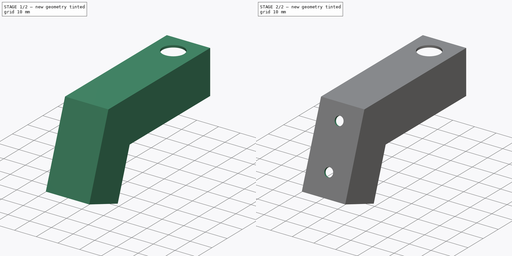
[diagram: build sequence overview — one tinted view per stage of 2, left to right]
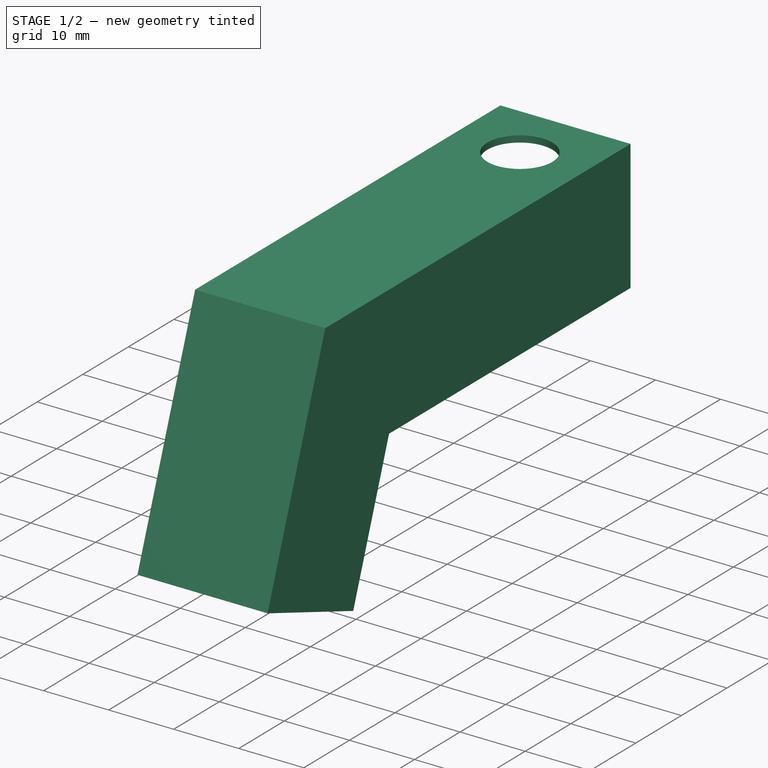
[diagram: stage 1 of 2 — iso view after this stage's code; geometry added in this stage tinted green]
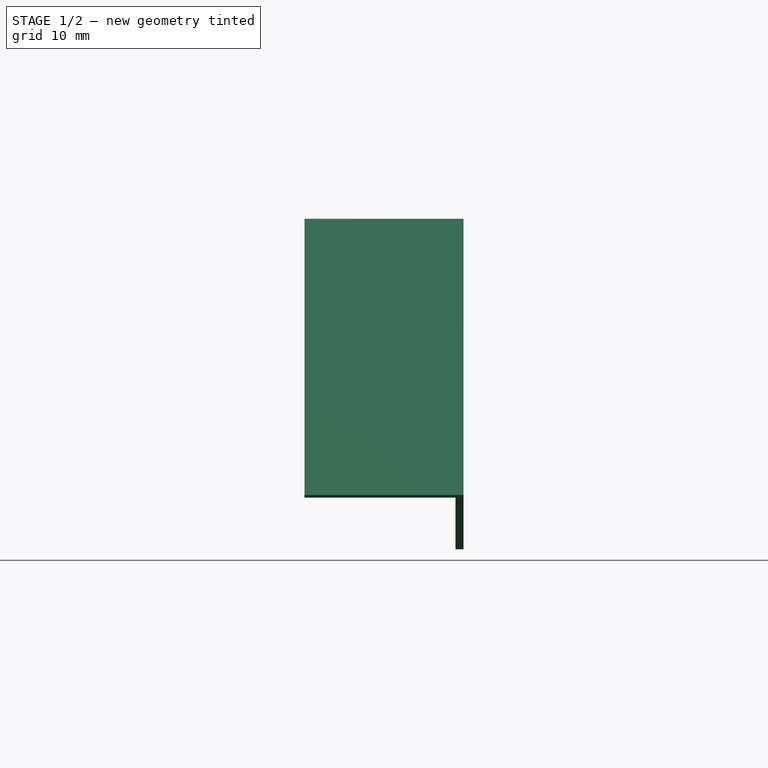
[diagram: stage 1 of 2 — front view after this stage's code; geometry added in this stage tinted green]
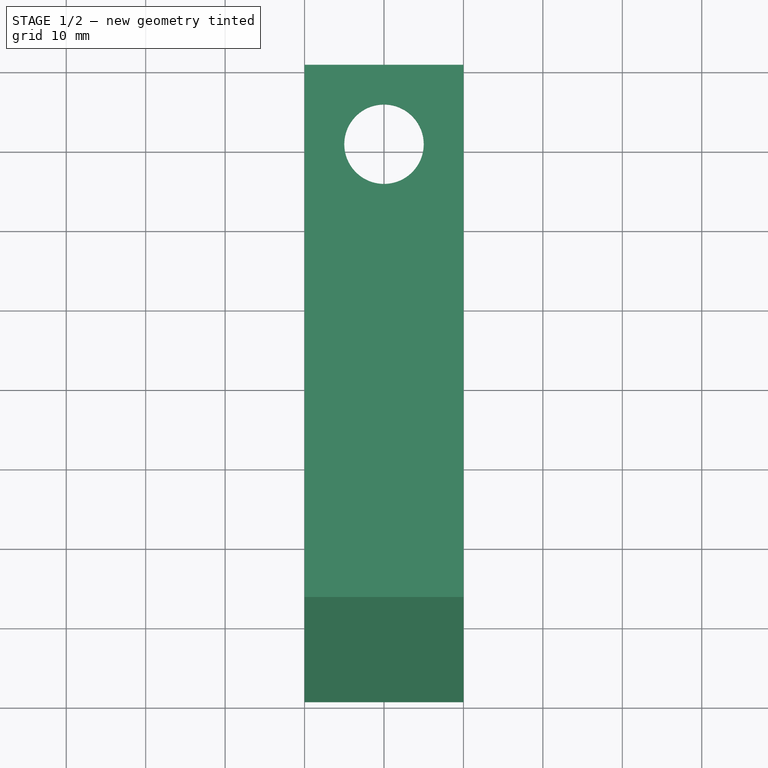
[diagram: stage 1 of 2 — top view after this stage's code; geometry added in this stage tinted green]
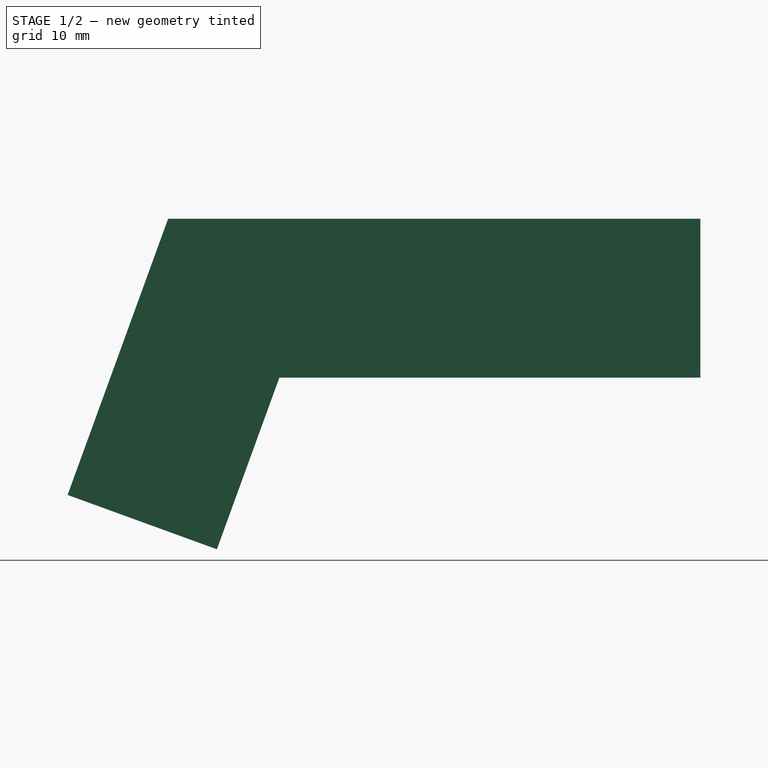
[diagram: stage 1 of 2 — right view after this stage's code; geometry added in this stage tinted green]
FCSTD DOCUMENT  (FreeCAD 0.14R3703 (Git))
Label: adapter
License: CC-BY 3.0
LicenseURL: http://creativecommons.org/licenses/by/3.0/
objects: Sketcher::SketchObject×4, PartDesign::Pocket×2, Part::Sweep×1, Part::Feature×1
note: 10 computed .brp shape members not serialized (recipe doc carries the construction recipe); baked Part::Feature solids carry a one-line shape summary decoded from their .brp

FEATURE [Sketcher::SketchObject] Sketch
  Placement = pos=(0,0,0) rot=(0.57735,0.57735,0.57735;2.0944rad)
  sketch-geometry (2):
    g0: LineSegment StartX=70.2606 StartY=0 StartZ=0 EndX=10.2606 EndY=0 EndZ=0
    g1: LineSegment StartX=10.2606 StartY=0 StartZ=0 EndX=0 EndY=-28.1908 EndZ=0
  constraints (7):
    c: PointOnObject(g0,g-1)
    c: PointOnObject(g0,g-1)
    c: Coincident(g0,g1)
    c: Angle(g1,g-1) = 1.91986
    c: DistanceX(g0) = -60
    c: Distance(g1) = 30
    c: DistanceX(g-1,g1) = 0
FEATURE [Sketcher::SketchObject] Sketch001
  Placement = pos=(0,70,0) rot=(1,0,0;1.5708rad)
  sketch-geometry (6):
    g0: LineSegment StartX=-10 StartY=9 StartZ=0 EndX=9 EndY=9 EndZ=0
    g1: LineSegment StartX=9 StartY=9 StartZ=0 EndX=9 EndY=-10 EndZ=0
    g2: LineSegment StartX=9 StartY=-10 StartZ=0 EndX=10 EndY=-10 EndZ=0
    g3: LineSegment StartX=10 StartY=-10 StartZ=0 EndX=10 EndY=10 EndZ=0
    g4: LineSegment StartX=10 StartY=10 StartZ=0 EndX=-10 EndY=10 EndZ=0
    g5: LineSegment StartX=-10 StartY=10 StartZ=0 EndX=-10 EndY=9 EndZ=0
  constraints (18):
    c: Coincident(g0,g1)
    c: Coincident(g1,g2)
    c: Coincident(g2,g3)
    c: Coincident(g3,g4)
    c: Coincident(g4,g5)
    c: Coincident(g5,g0)
    c: DistanceX(g2) = 1
    c: Vertical(g5)
    c: Horizontal(g2)
    c: Vertical(g1)
    c: Vertical(g3)
    c: Horizontal(g4)
    c: Horizontal(g0)
    c: Equal(g2,g5)
    c: Symmetric(g3,g4,g-2)
    c: Symmetric(g2,g3,g-1)
    c: DistanceY(g3) = 20
    c: DistanceX(g4) = -20
FEATURE [Part::Sweep] Sweep
  Frenet = true
  Sections = -> [Sketch001]
  Solid = true
  Spine = -> Sketch [Edge1]
  Transition = 1
FEATURE [Sketcher::SketchObject] Sketch002
  ExternalGeometry = -> [Sweep]
  Placement = pos=(0,0,10) rot=(0,0,1;0rad)
  Support = -> Sweep [Face5]
  sketch-geometry (1):
    g0: Circle CenterX=0 CenterY=60.2606 CenterZ=0 NormalX=0 NormalY=0 NormalZ=1 Radius=5
  constraints (3):
    c: PointOnObject(g0,g-2)
    c: Radius(g0) = 5
    c: DistanceY(g0,g-3) = 10
FEATURE [PartDesign::Pocket] Pocket
  Length = 1
  Sketch = -> Sketch002
  Type = 0
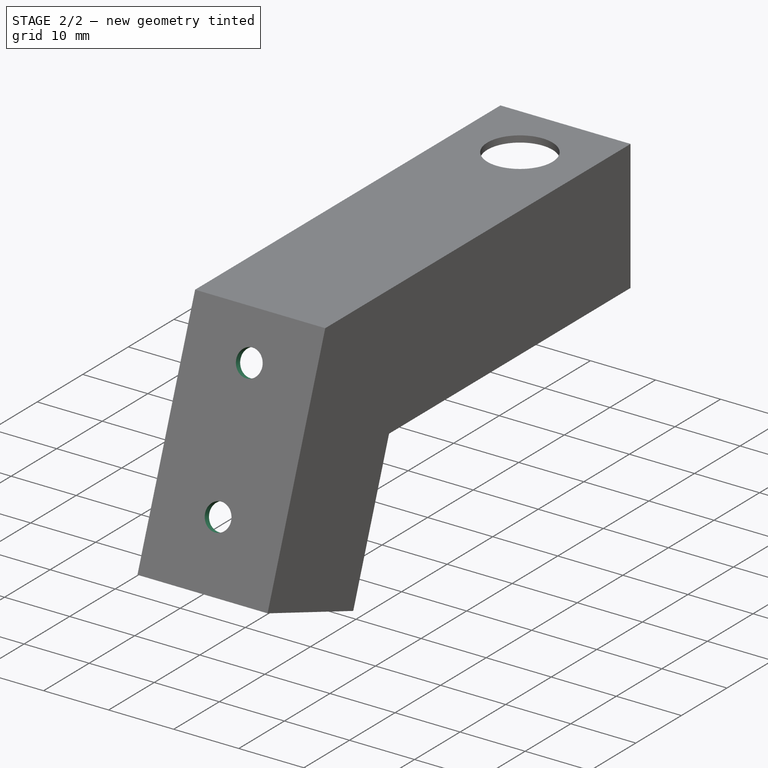
[diagram: stage 2 of 2 — iso view after this stage's code; geometry added in this stage tinted green]
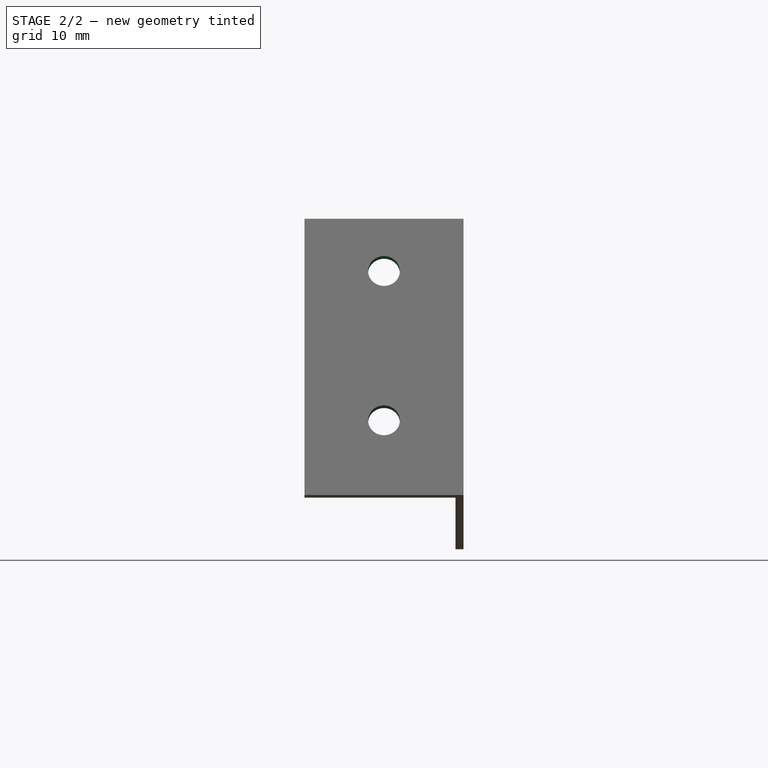
[diagram: stage 2 of 2 — front view after this stage's code; geometry added in this stage tinted green]
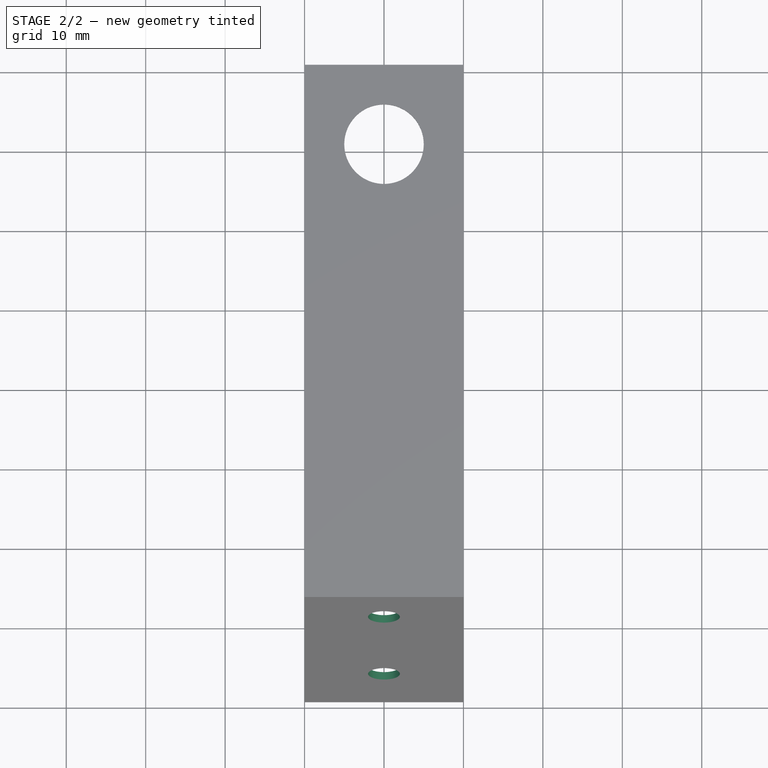
[diagram: stage 2 of 2 — top view after this stage's code; geometry added in this stage tinted green]
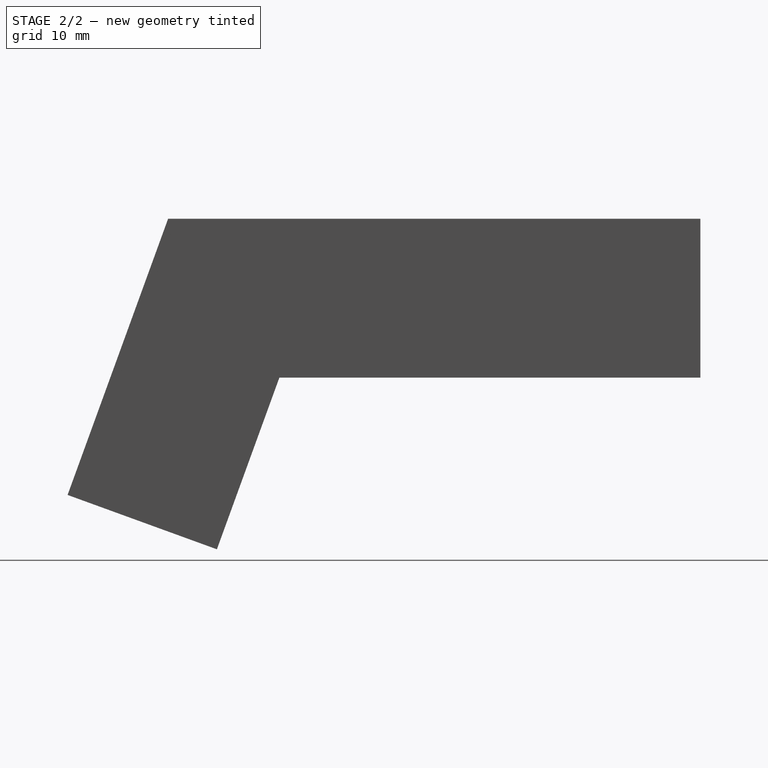
[diagram: stage 2 of 2 — right view after this stage's code; geometry added in this stage tinted green]
FEATURE [Sketcher::SketchObject] Sketch003
  ExternalGeometry = -> [Pocket]
  Placement = pos=(0,-0.336585,0.122507) rot=(1,0,0;1.22173rad)
  Support = -> Pocket [Face13]
  sketch-geometry (2):
    g0: Circle CenterX=0 CenterY=-16.4907 CenterZ=0 NormalX=0 NormalY=0 NormalZ=1 Radius=2
    g1: Circle CenterX=0 CenterY=3.50933 CenterZ=0 NormalX=0 NormalY=0 NormalZ=1 Radius=2
  constraints (6):
    c: PointOnObject(g0,g-2)
    c: Radius(g0) = 2
    c: DistanceY(g0,g-3) = -10
    c: PointOnObject(g1,g-2)
    c: DistanceY(g0,g1) = 20
    c: Equal(g0,g1)
FEATURE [PartDesign::Pocket] Pocket001
  Length = 1
  Sketch = -> Sketch003
  Type = 0
FEATURE [Part::Feature] Pocket001001  label="Adapter"
  shape: bbox 20 x 79.66 x 41.61 mm, 17 faces (baked)
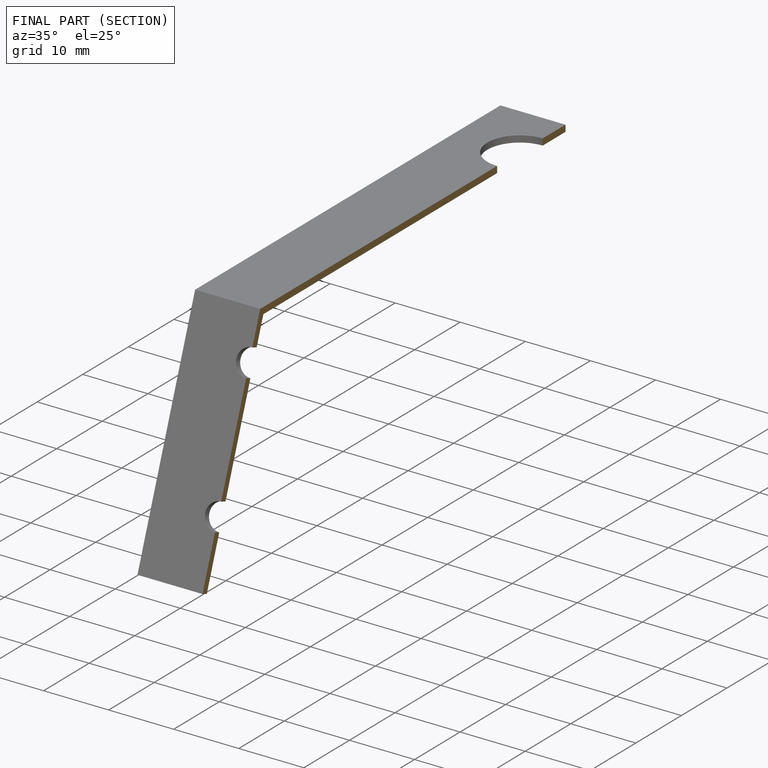
[diagram: finished part — half-section view (interior)]
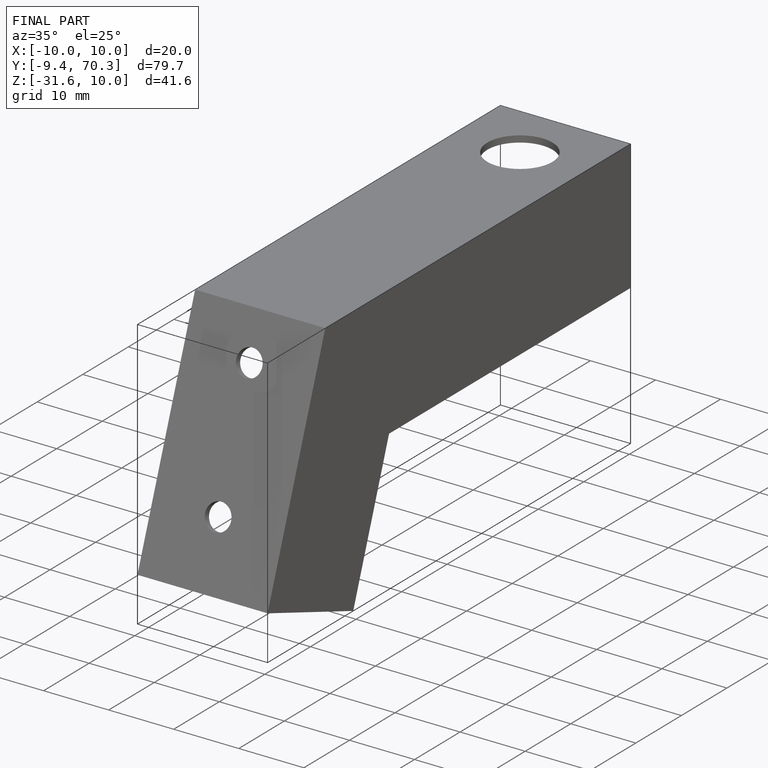
[diagram: finished part — iso view with bounding-box wireframe]
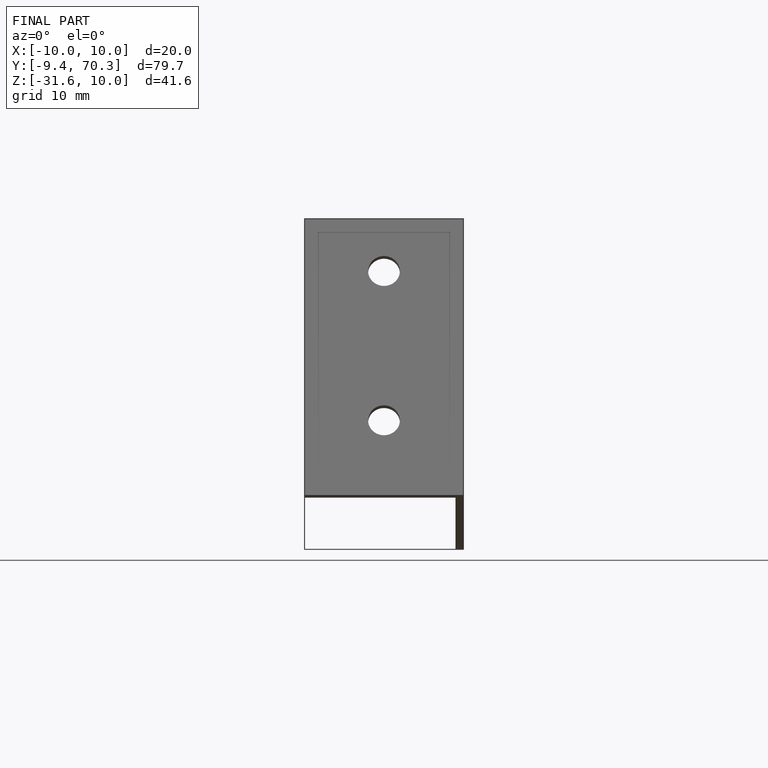
[diagram: finished part — front view with bounding-box wireframe]
